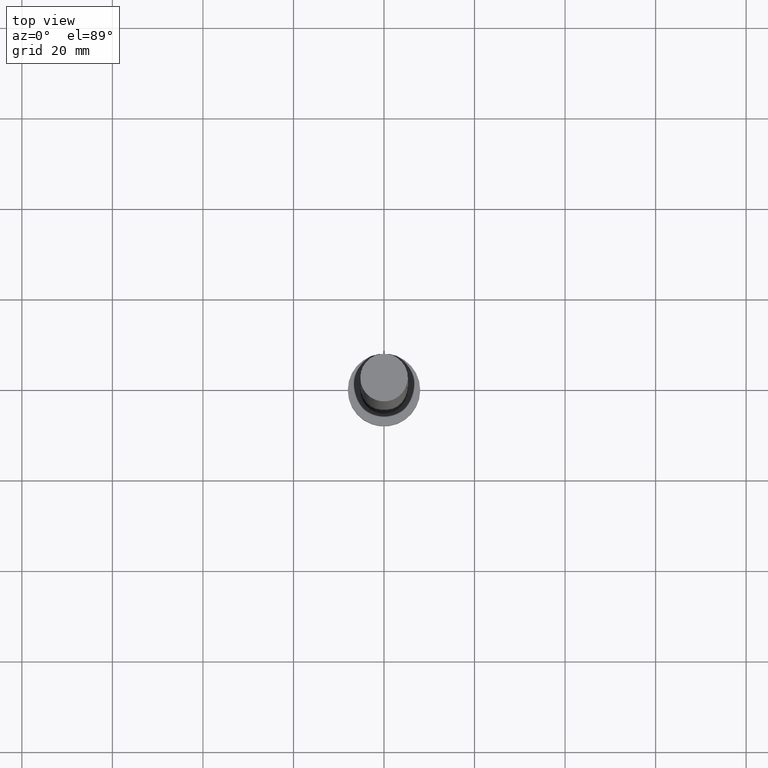
[diagram: clean part render]
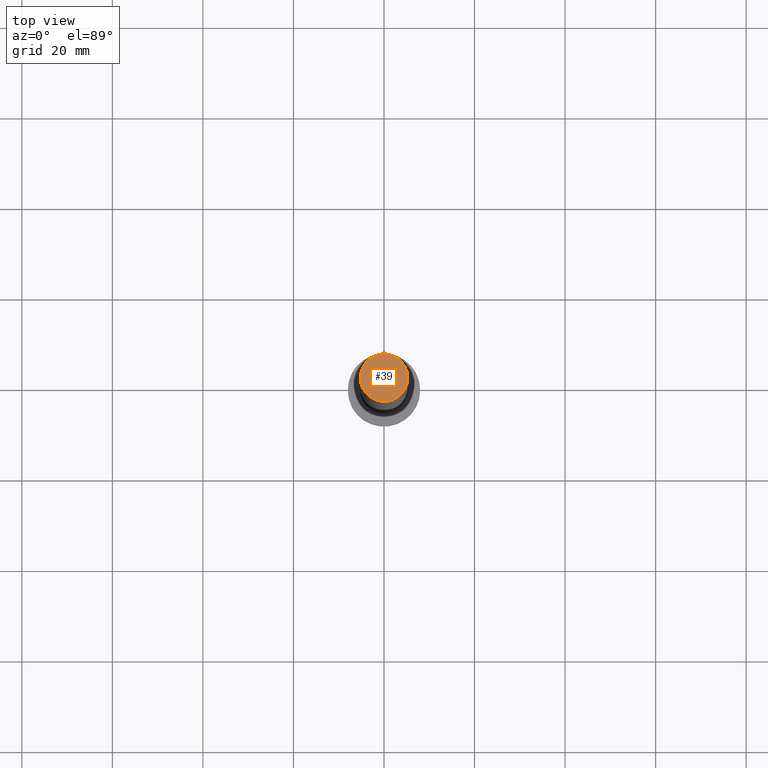
[diagram: same view with one face highlighted and labeled with its STEP entity id]
A machine part, top view. The second image highlights one B-rep face of the part: STEP entity #39.
In plain terms, the highlighted planar face has unit normal (0, 0, 1).
Its self-contained STEP definition (entity closure, byte-faithful):
#14 = CIRCLE ( 'NONE', #157, 5.250000000000000000 ) ;
#22 = CIRCLE ( 'NONE', #98, 5.250000000000000000 ) ;
#32 = DIRECTION ( 'NONE',  ( 0.000000000000000000, 0.000000000000000000, 1.000000000000000000 ) ) ;
#39 = ADVANCED_FACE ( 'NONE', ( #105 ), #204, .T. ) ;
#58 = EDGE_CURVE ( 'NONE', #137, #129, #22, .T. ) ;
#98 = AXIS2_PLACEMENT_3D ( 'NONE', #158, #174, #197 ) ;
#102 = CARTESIAN_POINT ( 'NONE',  ( 0.000000000000000000, 0.000000000000000000, 160.0000000000000000 ) ) ;
#105 = FACE_OUTER_BOUND ( 'NONE', #236, .T. ) ;
#109 = CARTESIAN_POINT ( 'NONE',  ( 0.000000000000000000, 0.000000000000000000, 160.0000000000000000 ) ) ;
#129 = VERTEX_POINT ( 'NONE', #210 ) ;
#137 = VERTEX_POINT ( 'NONE', #167 ) ;
#151 = EDGE_CURVE ( 'NONE', #129, #137, #14, .T. ) ;
#157 = AXIS2_PLACEMENT_3D ( 'NONE', #109, #32, #182 ) ;
#158 = CARTESIAN_POINT ( 'NONE',  ( 0.000000000000000000, 0.000000000000000000, 160.0000000000000000 ) ) ;
#162 = ORIENTED_EDGE ( 'NONE', *, *, #58, .T. ) ;
#167 = CARTESIAN_POINT ( 'NONE',  ( 5.250000000000000000, 6.429395695523604153E-16, 160.0000000000000000 ) ) ;
#174 = DIRECTION ( 'NONE',  ( 0.000000000000000000, 0.000000000000000000, 1.000000000000000000 ) ) ;
#182 = DIRECTION ( 'NONE',  ( 1.000000000000000000, 0.000000000000000000, 0.000000000000000000 ) ) ;
#184 = DIRECTION ( 'NONE',  ( 0.000000000000000000, 0.000000000000000000, 1.000000000000000000 ) ) ;
#197 = DIRECTION ( 'NONE',  ( 1.000000000000000000, 0.000000000000000000, 0.000000000000000000 ) ) ;
#200 = AXIS2_PLACEMENT_3D ( 'NONE', #102, #184, #238 ) ;
#204 = PLANE ( 'NONE',  #200 ) ;
#210 = CARTESIAN_POINT ( 'NONE',  ( -5.250000000000000000, 0.000000000000000000, 160.0000000000000000 ) ) ;
#226 = ORIENTED_EDGE ( 'NONE', *, *, #151, .T. ) ;
#236 = EDGE_LOOP ( 'NONE', ( #226, #162 ) ) ;
#238 = DIRECTION ( 'NONE',  ( 1.000000000000000000, 0.000000000000000000, -0.000000000000000000 ) ) ;